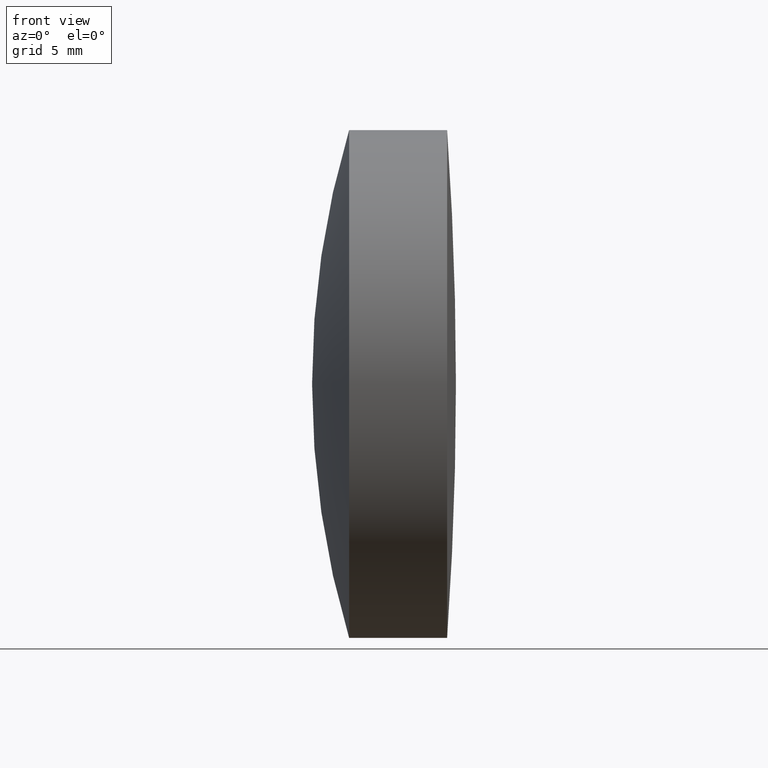
[diagram: clean part render]
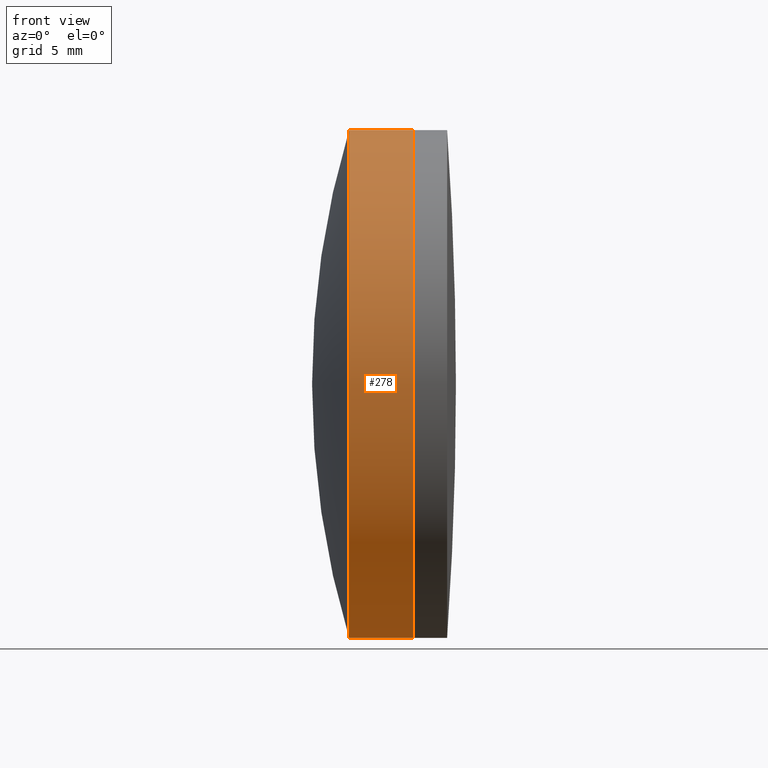
[diagram: same view with one face highlighted and labeled with its STEP entity id]
A machine part, front view. The second image highlights one B-rep face of the part: STEP entity #278.
In plain terms, the highlighted cylindrical surface (partial cylindrical patch) has radius 15 mm, axis along (-1, -0, -0).
Its self-contained STEP definition (entity closure, byte-faithful):
#4 = ORIENTED_EDGE ( 'NONE', *, *, #266, .T. ) ;
#21 = VECTOR ( 'NONE', #344, 1000.000000000000000 ) ;
#22 = ORIENTED_EDGE ( 'NONE', *, *, #247, .F. ) ;
#27 = VECTOR ( 'NONE', #326, 1000.000000000000000 ) ;
#31 = CARTESIAN_POINT ( 'NONE',  ( 532.9862274353328100, 0.0000000000000000000, 14.99999999999960200 ) ) ;
#35 = CARTESIAN_POINT ( 'NONE',  ( 532.9862274353328100, 0.0000000000000000000, 0.0000000000000000000 ) ) ;
#37 = DIRECTION ( 'NONE',  ( -1.000000000000000000, -0.0000000000000000000, -0.0000000000000000000 ) ) ;
#43 = AXIS2_PLACEMENT_3D ( 'NONE', #91, #86, #76 ) ;
#76 = DIRECTION ( 'NONE',  ( 0.0000000000000000000, 0.0000000000000000000, 1.000000000000000000 ) ) ;
#80 = AXIS2_PLACEMENT_3D ( 'NONE', #35, #325, #141 ) ;
#86 = DIRECTION ( 'NONE',  ( -1.000000000000000000, -0.0000000000000000000, -0.0000000000000000000 ) ) ;
#88 = LINE ( 'NONE', #232, #21 ) ;
#89 = ORIENTED_EDGE ( 'NONE', *, *, #128, .F. ) ;
#91 = CARTESIAN_POINT ( 'NONE',  ( 529.1954357313371700, 0.0000000000000000000, 0.0000000000000000000 ) ) ;
#114 = DIRECTION ( 'NONE',  ( 0.0000000000000000000, 0.0000000000000000000, 1.000000000000000000 ) ) ;
#128 = EDGE_CURVE ( 'NONE', #139, #210, #156, .T. ) ;
#135 = ORIENTED_EDGE ( 'NONE', *, *, #198, .T. ) ;
#138 = FACE_OUTER_BOUND ( 'NONE', #330, .T. ) ;
#139 = VERTEX_POINT ( 'NONE', #301 ) ;
#141 = DIRECTION ( 'NONE',  ( 0.0000000000000000000, 0.0000000000000000000, 1.000000000000000000 ) ) ;
#156 = LINE ( 'NONE', #298, #27 ) ;
#198 = EDGE_CURVE ( 'NONE', #235, #274, #88, .T. ) ;
#205 = CYLINDRICAL_SURFACE ( 'NONE', #219, 14.99999999999960700 ) ;
#210 = VERTEX_POINT ( 'NONE', #285 ) ;
#219 = AXIS2_PLACEMENT_3D ( 'NONE', #321, #37, #114 ) ;
#232 = CARTESIAN_POINT ( 'NONE',  ( 124.5233095260452400, 0.0000000000000000000, 14.99999999999960700 ) ) ;
#235 = VERTEX_POINT ( 'NONE', #31 ) ;
#247 = EDGE_CURVE ( 'NONE', #210, #274, #281, .T. ) ;
#266 = EDGE_CURVE ( 'NONE', #139, #235, #324, .T. ) ;
#274 = VERTEX_POINT ( 'NONE', #299 ) ;
#278 = ADVANCED_FACE ( 'NONE', ( #138 ), #205, .T. ) ;
#281 = CIRCLE ( 'NONE', #43, 14.99999999999961500 ) ;
#285 = CARTESIAN_POINT ( 'NONE',  ( 529.1954357313371700, 1.836970198720976300E-015, -15.00000000000004400 ) ) ;
#298 = CARTESIAN_POINT ( 'NONE',  ( 124.5233095260452400, 1.836970198720981900E-015, -14.99999999999960700 ) ) ;
#299 = CARTESIAN_POINT ( 'NONE',  ( 529.1954357313371700, 0.0000000000000000000, 14.99999999999956700 ) ) ;
#301 = CARTESIAN_POINT ( 'NONE',  ( 532.9862274353328100, 1.836970198720981500E-015, -14.99999999999960200 ) ) ;
#321 = CARTESIAN_POINT ( 'NONE',  ( 124.5233095260452400, 0.0000000000000000000, 0.0000000000000000000 ) ) ;
#324 = CIRCLE ( 'NONE', #80, 14.99999999999960200 ) ;
#325 = DIRECTION ( 'NONE',  ( -1.000000000000000000, -0.0000000000000000000, -0.0000000000000000000 ) ) ;
#326 = DIRECTION ( 'NONE',  ( -1.000000000000000000, -0.0000000000000000000, -0.0000000000000000000 ) ) ;
#330 = EDGE_LOOP ( 'NONE', ( #89, #4, #135, #22 ) ) ;
#344 = DIRECTION ( 'NONE',  ( -1.000000000000000000, -0.0000000000000000000, -0.0000000000000000000 ) ) ;